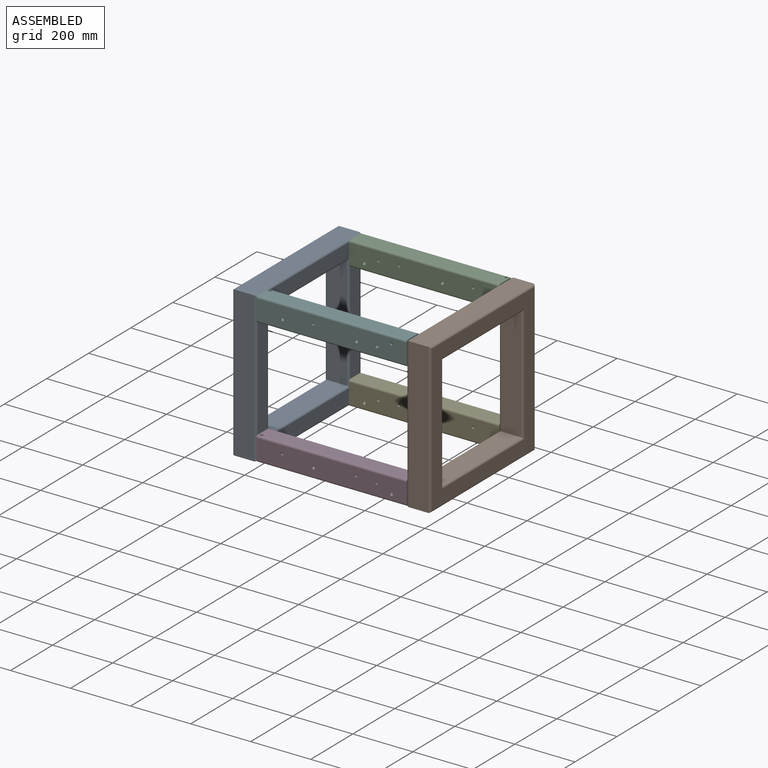
[diagram: assembled view]
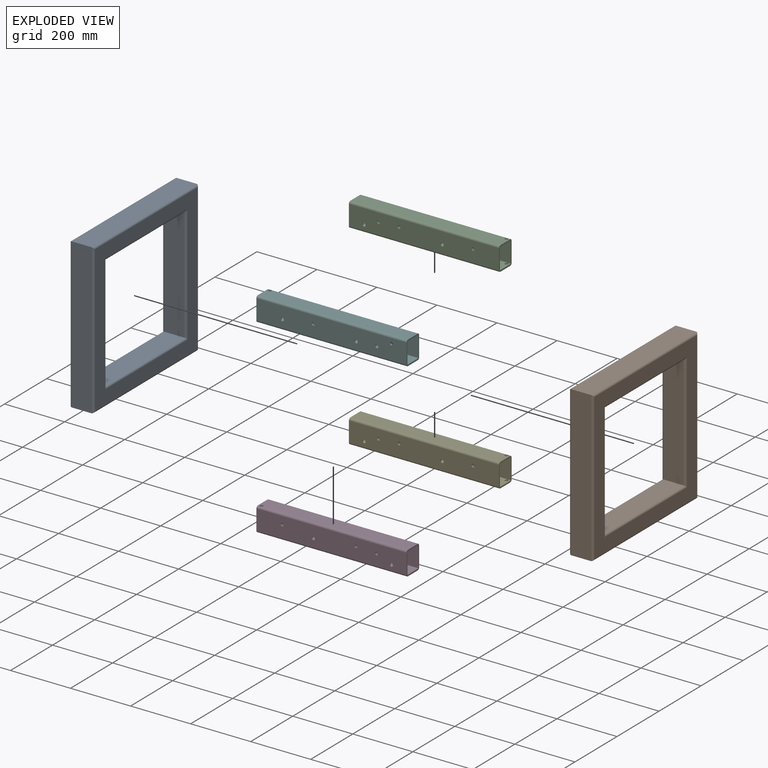
[diagram: exploded view]
GUIDED TOUR — MATED ASSEMBLY WITH SUBASSEMBLIES (Onshape document 570762d4449b630760134de0, AutoMate assembly 570762d4449b630760134de0_2d2cd445d036063de1d0b33d_e6518e5409fb736097e91c08_default)

This assembly has 12 component occurrences arranged in 6 top-level units: 4 individual components plus 2 subassemblies (S0, S1). The tour has two levels: first the top level, where each subassembly is treated as one rigid unit; then each subassembly is toured internally in its own section (nesting deeper than one subassembly level is flattened into its subassembly's section).

Components are labeled P0..P11 across the whole record; subassembly units are labeled S0..S1. A mate is a constraint between two units; its type names the relative motion it leaves free:
  FASTENED — locks the two components together rigidly (no relative motion),
  PLANAR — leaves sliding in the plane through the listed point (normal = the listed direction) and rotation about that normal free.
Axis/direction vectors are unit vectors and 'through' points are millimeter coordinates, both in the assembly's world frame.

TOP-LEVEL MATES (between units; each subassembly's internal mates are listed in its own section)
  1. PLANAR "Planar 14": S1 <-> P5, direction (0.000, 1.000, 0.000) through (397.62, -212.50, 270.20) mm
  2. PLANAR "Planar 6": P10 <-> S0, direction (0.000, 0.000, 1.000) through (108.39, -682.56, 520.20) mm
  3. PLANAR "Planar 3": P6 <-> S0, direction (0.000, 0.000, -1.000) through (108.39, -682.44, 20.20) mm
  4. PLANAR "Planar 10": P5 <-> S0, direction (-1.000, 0.000, 0.000) through (-142.38, -242.50, 480.20) mm
  5. PLANAR "Planar 13": S1 <-> P5, direction (-1.000, 0.000, 0.000) through (357.62, -462.50, 491.00) mm
  6. PLANAR "Planar 2": P6 <-> S0, direction (0.000, -1.000, 0.000) through (107.07, -712.50, 60.21) mm
  7. PLANAR "Planar 5": P10 <-> S0, direction (0.000, -1.000, 0.000) through (-142.38, -712.50, 513.20) mm
  8. PLANAR "Planar 4": P10 <-> S0, direction (-1.000, 0.000, 0.000) through (-142.38, -659.50, 440.20) mm
  9. PLANAR "Planar 12": P5 <-> S0, direction (0.000, 0.000, 1.000) through (106.86, -242.56, 520.20) mm
  10. PLANAR "Planar 1": P6 <-> S0, direction (-1.000, 0.000, 0.000) through (-142.38, -705.50, 20.20) mm
  11. PLANAR "Planar 11": P5 <-> S0, direction (0.000, 1.000, 0.000) through (108.18, -212.50, 480.21) mm
  12. PLANAR "Planar 9": P7 <-> S0, direction (0.000, 1.000, 0.000) through (108.18, -212.50, 60.21) mm
  13. PLANAR "Planar 8": P7 <-> S0, direction (0.000, 0.000, -1.000) through (106.86, -242.56, 20.20) mm
  14. PLANAR "Planar 15": S1 <-> P5, direction (0.000, 0.000, 1.000) through (397.62, -462.50, 520.20) mm
  15. PLANAR "Planar 7": P7 <-> S0, direction (-1.000, 0.000, 0.000) through (-142.38, -242.50, 20.20) mm

TOP-LEVEL ASSEMBLY ORDER
  1. P10 — the base component [order verified]
  2. P5 [order verified]
  3. P7 [order verified]
  4. P6 [order verified]
  5. S1 [order verified]
  6. S0 [order verified]
Order-tag legend:
  [order verified] — this step's position reverses a verified removal order: the component was checked to insert without passing through the ones already placed.

Of the 12 component occurrences, 12 carry the full construction recipe — the FeatureScript program that regenerates the part's solid from scratch; the rest are supplied as boundary geometry only. Each toured unit is shown spotlighted twice — assembled, then exploded with a leader line back to its socket (green = recipe-attached component, orange = geometry-only, blue = subassembly unit; the rest desaturated gray).
NOTE — document 2 of 2 of this assembly tour. The two overview renders and the header above are repeated from document 1; the component sections below continue where the previous document stopped.
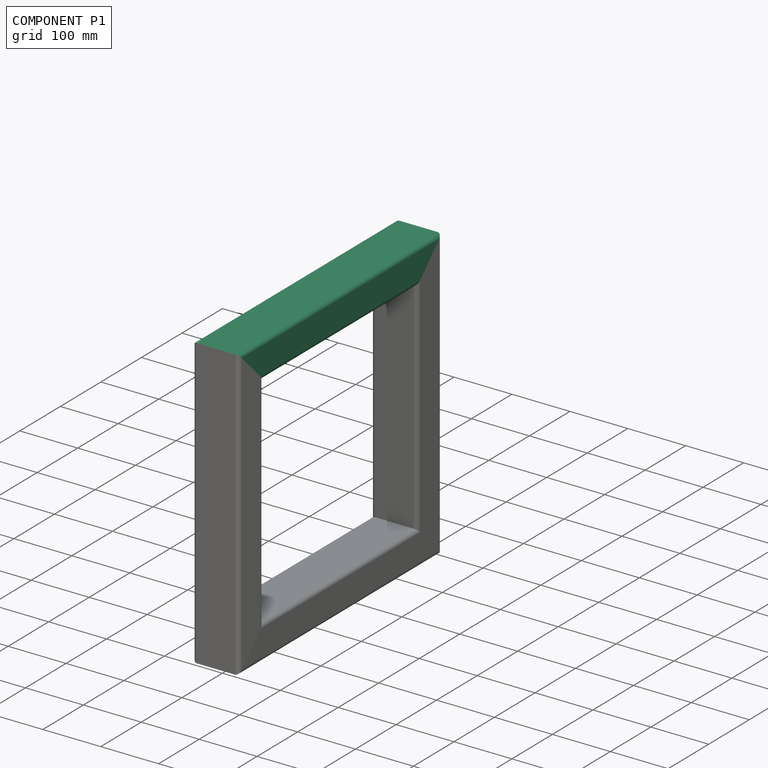
[diagram: component P1 — assembled]
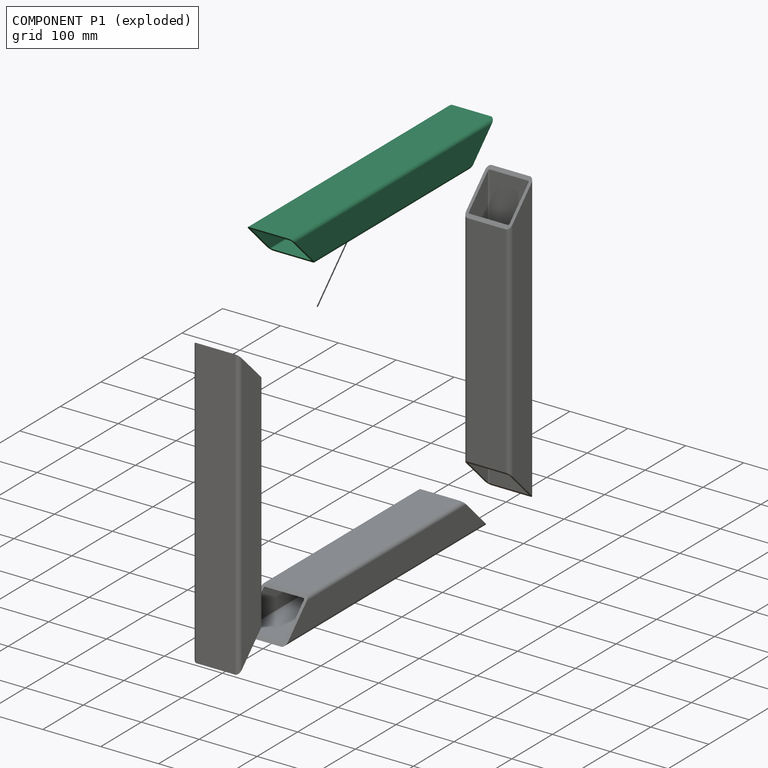
[diagram: component P1 — exploded]
COMPONENT P1 — recipe-attached (CADFS 00210872, mesh-verified: the recipe's output STEP matches this component's geometry to below the mesh-comparison resolution (tessellation chordal tolerance ~0.765 mm)).
Held by: PLANAR mate "Planar 6" to P9; FASTENED mate "Fastened 2" to P8; PLANAR mate "Planar 5" to P9; PLANAR mate "Planar 3" to P8; PLANAR mate "Planar 4" to P8; PLANAR mate "Planar 3" to P8; PLANAR mate "Planar 4" to P8; FASTENED mate "Fastened 2" to P8; PLANAR mate "Planar 5" to P9; PLANAR mate "Planar 6" to P9.
Construction recipe (FeatureScript — the CAD program that rebuilds this solid; sketch coordinates are in the units given by the * unit suffixes, e.g. mm):

FeatureScript 1511;
import(path : "onshape/std/geometry.fs", version : "1511.0");
import(path : "onshape/std/common.fs", version : "1511.0");
const mm = millimeter;
const VERTEX = EntityType.VERTEX;
const EDGE = EntityType.EDGE;
const FACE = EntityType.FACE;
const BODY = EntityType.BODY;
function v(x, y){return vector(x, y);}
function OD(order){return orderDisambiguation(order);}
function OSD(set){return originalSetDisambiguation(set);}
function TD(topology){return topologyDisambiguation(topology);}
function TDD(query){return trueDependencyDisambiguation(query);}
function sQuery(a, b, c) {return sketchEntityQuery(a, b, c);}

annotation { "Feature Type Name" : "Feature", "Feature Type Description" : "" }
export const myFeature = defineFeature(function(context is Context, id is Id, definition is map)
    precondition{}
    {
        {
            var Q0;
            Q0=qCreatedBy(makeId("Front.planeOp"),FACE);
            var sketch = newSketch(context, id + "F0", { "sketchPlane" : qUnion([Q0])});
            skLineSegment(sketch, "E0.bottom", {"start": v(33, 30) * mm, "end": v(-33, 30) * mm});
            skLineSegment(sketch, "E0.top", {"start": v(33, -30) * mm, "end": v(-33, -30) * mm});
            skLineSegment(sketch, "E0.left", {"start": v(40, 23) * mm, "end": v(40, -23) * mm});
            skLineSegment(sketch, "E0.right", {"start": v(-40, 23) * mm, "end": v(-40, -23) * mm});
            skPoint(sketch, "E0.middle", {"position": v(0, 0) * mm});
            skLineSegment(sketch, "E1.bottom", {"start": v(33, 25) * mm, "end": v(-33, 25) * mm});
            skLineSegment(sketch, "E1.top", {"start": v(33, -25) * mm, "end": v(-33, -25) * mm});
            skLineSegment(sketch, "E1.left", {"start": v(35, 23) * mm, "end": v(35, -23) * mm});
            skLineSegment(sketch, "E1.right", {"start": v(-35, 23) * mm, "end": v(-35, -23) * mm});
            skPoint(sketch, "E2.visualSharp", {"position": v(-40, 30) * mm});
            skArc(sketch, "E2.filletArc", {"start": v(-33, 30) * mm, "mid": v(-37.95, 27.95) * mm, "end": v(-40, 23) * mm});
            skPoint(sketch, "E3.visualSharp", {"position": v(-40, -30) * mm});
            skArc(sketch, "E3.filletArc", {"start": v(-40, -23) * mm, "mid": v(-37.95, -27.95) * mm, "end": v(-33, -30) * mm});
            skPoint(sketch, "E4.visualSharp", {"position": v(40, -30) * mm});
            skArc(sketch, "E4.filletArc", {"start": v(33, -30) * mm, "mid": v(37.95, -27.95) * mm, "end": v(40, -23) * mm});
            skPoint(sketch, "E5.visualSharp", {"position": v(40, 30) * mm});
            skArc(sketch, "E5.filletArc", {"start": v(40, 23) * mm, "mid": v(37.95, 27.95) * mm, "end": v(33, 30) * mm});
            skPoint(sketch, "E6.visualSharp", {"position": v(-35, -25) * mm});
            skArc(sketch, "E6.filletArc", {"start": v(-35, -23) * mm, "mid": v(-34.41, -24.41) * mm, "end": v(-33, -25) * mm});
            skPoint(sketch, "E7.visualSharp", {"position": v(35, 25) * mm});
            skArc(sketch, "E7.filletArc", {"start": v(35, 23) * mm, "mid": v(34.41, 24.41) * mm, "end": v(33, 25) * mm});
            skPoint(sketch, "E8.visualSharp", {"position": v(35, -25) * mm});
            skArc(sketch, "E8.filletArc", {"start": v(33, -25) * mm, "mid": v(34.41, -24.41) * mm, "end": v(35, -23) * mm});
            skPoint(sketch, "E9.visualSharp", {"position": v(-35, 25) * mm});
            skArc(sketch, "E9.filletArc", {"start": v(-33, 25) * mm, "mid": v(-34.41, 24.41) * mm, "end": v(-35, 23) * mm});
            skSolve(sketch);
        }
        {
            var Q0;
            Q0=makeQuery(id+"F0.imprint","IMPRINT",FACE,{"disambiguationData":[TD([[makeQuery(id+"F0.imprint","IMPRINT",EDGE,{"derivedFrom":sQuery(id+"F0.wireOp",EDGE,"E0.bottom")}),1.0]])]});
            extrude(context, id + "F1", {"entities" : qUnion([Q0]), "endBound" : BoundingType.SYMMETRIC, "depth" : 500 * mm});
        }
        {
            var Q0;
            Q0=makeQuery(id+"F1.opExtrude","SWEPT_FACE",FACE,{"disambiguationData":[OSD([sQuery(id+"F0.wireOp",EDGE,"E0.right")])]});
            var sketch = newSketch(context, id + "F2", { "sketchPlane" : qUnion([Q0])});
            skLineSegment(sketch, "E10.0", {"start": v(-190, -30) * mm, "end": v(-250, -30) * mm});
            skPoint(sketch, "E11.0", {"position": v(-250, 30) * mm});
            skLineSegment(sketch, "E12", {"start": v(-250, 30) * mm, "end": v(-250, -30) * mm});
            skLineSegment(sketch, "E13", {"start": v(-250, 30) * mm, "end": v(-190, -30) * mm});
            skPoint(sketch, "E14.orphan", {"position": v(250, -30) * mm});
            skLineSegment(sketch, "E15.MirrorCS", {"start": v(250, 30) * mm, "end": v(250, -30) * mm});
            skLineSegment(sketch, "E16.MirrorCS", {"start": v(250, 30) * mm, "end": v(190, -30) * mm});
            skLineSegment(sketch, "E17.MirrorCS", {"start": v(190, -30) * mm, "end": v(250, -30) * mm});
            skSolve(sketch);
        }
        {
            var Q0;
            {var subQ0=sQuery(id+"F2.wireOp",EDGE,"E10.0");Q0=makeQuery(id+"F2.imprint","IMPRINT",FACE,{"disambiguationData":[TD([[makeQuery(id+"F2.imprint","IMPRINT",EDGE,{"derivedFrom":subQ0}),-1.0]])]});}
            var Q1;
            {var subQ0=sQuery(id+"F2.wireOp",EDGE,"E12");var subQ1=sQuery(id+"F0.wireOp",EDGE,"E0.right");var subQ2=makeQuery(id+"F1.opExtrude","SWEPT_EDGE",EDGE,{"disambiguationData":[OSD([subQ1,sQuery(id+"F0.wireOp",EDGE,"E2.filletArc")])]});var subQ3=makeQuery(id+"F2.imprint","INTERSECT",VERTEX,{"derivedFrom":[subQ2,subQ0]});Q1=makeQuery(id+"F2.imprint","IMPRINT",FACE,{"disambiguationData":[TD([[makeQuery(id+"F2.imprint","IMPRINT",EDGE,{"disambiguationData":[TD([[subQ3,-1.0]])],"derivedFrom":subQ0}),1.0]])]});}
            var Q2;
            {var subQ0=sQuery(id+"F2.wireOp",EDGE,"E12");var subQ3=sQuery(id+"F2.wireOp",EDGE,"E13");var subQ4=makeQuery(id+"F2.imprint","INTERSECT",VERTEX,{"derivedFrom":[subQ0,subQ3]});Q2=makeQuery(id+"F2.imprint","IMPRINT",FACE,{"disambiguationData":[TD([[makeQuery(id+"F2.imprint","IMPRINT",EDGE,{"disambiguationData":[TD([[subQ4,-1.0]])],"derivedFrom":subQ0}),1.0]])]});}
            var Q3;
            {var subQ0=sQuery(id+"F2.wireOp",EDGE,"E15.MirrorCS");var subQ1=sQuery(id+"F0.wireOp",EDGE,"E0.right");var subQ2=makeQuery(id+"F1.opExtrude","SWEPT_EDGE",EDGE,{"disambiguationData":[OSD([subQ1,sQuery(id+"F0.wireOp",EDGE,"E2.filletArc")])]});var subQ3=makeQuery(id+"F2.imprint","INTERSECT",VERTEX,{"derivedFrom":[subQ2,subQ0]});Q3=makeQuery(id+"F2.imprint","IMPRINT",FACE,{"disambiguationData":[TD([[makeQuery(id+"F2.imprint","IMPRINT",EDGE,{"disambiguationData":[TD([[subQ3,-1.0]])],"derivedFrom":subQ0}),-1.0]])]});}
            var Q4;
            {var subQ3=sQuery(id+"F2.wireOp",EDGE,"E17.MirrorCS");Q4=makeQuery(id+"F2.imprint","IMPRINT",FACE,{"disambiguationData":[TD([[makeQuery(id+"F2.imprint","IMPRINT",EDGE,{"derivedFrom":subQ3}),1.0]])]});}
            var Q5;
            {var subQ0=sQuery(id+"F2.wireOp",EDGE,"E15.MirrorCS");var subQ3=sQuery(id+"F2.wireOp",EDGE,"E16.MirrorCS");var subQ4=makeQuery(id+"F2.imprint","INTERSECT",VERTEX,{"derivedFrom":[subQ0,subQ3]});Q5=makeQuery(id+"F2.imprint","IMPRINT",FACE,{"disambiguationData":[TD([[makeQuery(id+"F2.imprint","IMPRINT",EDGE,{"disambiguationData":[TD([[subQ4,-1.0]])],"derivedFrom":subQ0}),-1.0]])]});}
            extrude(context, id + "F3", {"entities" : qUnion([Q0, Q1, Q2, Q3, Q4, Q5]), "operationType" : NewBodyOperationType.REMOVE, "oppositeDirection" : true, "depth" : 200 * mm});
        }
    });
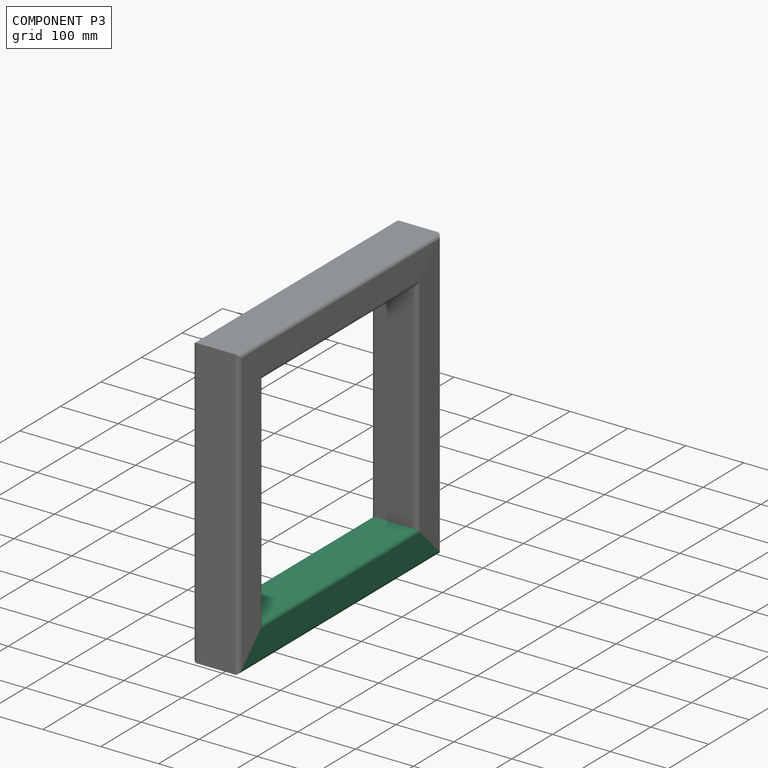
[diagram: component P3 — assembled]
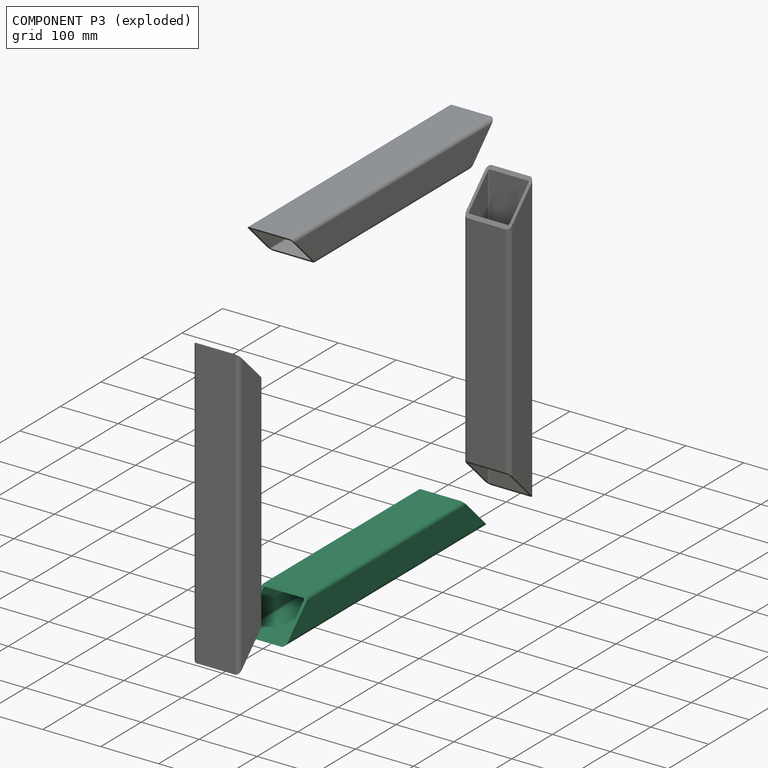
[diagram: component P3 — exploded]
COMPONENT P3 — recipe-attached (CADFS 00210872, mesh-verified: the recipe's output STEP matches this component's geometry to below the mesh-comparison resolution (tessellation chordal tolerance ~0.765 mm)).
Held by: PLANAR mate "Planar 2" to P8; FASTENED mate "Fastened 1" to P8; FASTENED mate "Fastened 3" to P9; PLANAR mate "Planar 1" to P8; PLANAR mate "Planar 1" to P8; FASTENED mate "Fastened 1" to P8; FASTENED mate "Fastened 3" to P9; PLANAR mate "Planar 2" to P8.
Construction recipe (FeatureScript — the CAD program that rebuilds this solid; sketch coordinates are in the units given by the * unit suffixes, e.g. mm):

FeatureScript 1511;
import(path : "onshape/std/geometry.fs", version : "1511.0");
import(path : "onshape/std/common.fs", version : "1511.0");
const mm = millimeter;
const VERTEX = EntityType.VERTEX;
const EDGE = EntityType.EDGE;
const FACE = EntityType.FACE;
const BODY = EntityType.BODY;
function v(x, y){return vector(x, y);}
function OD(order){return orderDisambiguation(order);}
function OSD(set){return originalSetDisambiguation(set);}
function TD(topology){return topologyDisambiguation(topology);}
function TDD(query){return trueDependencyDisambiguation(query);}
function sQuery(a, b, c) {return sketchEntityQuery(a, b, c);}

annotation { "Feature Type Name" : "Feature", "Feature Type Description" : "" }
export const myFeature = defineFeature(function(context is Context, id is Id, definition is map)
    precondition{}
    {
        {
            var Q0;
            Q0=qCreatedBy(makeId("Front.planeOp"),FACE);
            var sketch = newSketch(context, id + "F0", { "sketchPlane" : qUnion([Q0])});
            skLineSegment(sketch, "E0.bottom", {"start": v(33, 30) * mm, "end": v(-33, 30) * mm});
            skLineSegment(sketch, "E0.top", {"start": v(33, -30) * mm, "end": v(-33, -30) * mm});
            skLineSegment(sketch, "E0.left", {"start": v(40, 23) * mm, "end": v(40, -23) * mm});
            skLineSegment(sketch, "E0.right", {"start": v(-40, 23) * mm, "end": v(-40, -23) * mm});
            skPoint(sketch, "E0.middle", {"position": v(0, 0) * mm});
            skLineSegment(sketch, "E1.bottom", {"start": v(33, 25) * mm, "end": v(-33, 25) * mm});
            skLineSegment(sketch, "E1.top", {"start": v(33, -25) * mm, "end": v(-33, -25) * mm});
            skLineSegment(sketch, "E1.left", {"start": v(35, 23) * mm, "end": v(35, -23) * mm});
            skLineSegment(sketch, "E1.right", {"start": v(-35, 23) * mm, "end": v(-35, -23) * mm});
            skPoint(sketch, "E2.visualSharp", {"position": v(-40, 30) * mm});
            skArc(sketch, "E2.filletArc", {"start": v(-33, 30) * mm, "mid": v(-37.95, 27.95) * mm, "end": v(-40, 23) * mm});
            skPoint(sketch, "E3.visualSharp", {"position": v(-40, -30) * mm});
            skArc(sketch, "E3.filletArc", {"start": v(-40, -23) * mm, "mid": v(-37.95, -27.95) * mm, "end": v(-33, -30) * mm});
            skPoint(sketch, "E4.visualSharp", {"position": v(40, -30) * mm});
            skArc(sketch, "E4.filletArc", {"start": v(33, -30) * mm, "mid": v(37.95, -27.95) * mm, "end": v(40, -23) * mm});
            skPoint(sketch, "E5.visualSharp", {"position": v(40, 30) * mm});
            skArc(sketch, "E5.filletArc", {"start": v(40, 23) * mm, "mid": v(37.95, 27.95) * mm, "end": v(33, 30) * mm});
            skPoint(sketch, "E6.visualSharp", {"position": v(-35, -25) * mm});
            skArc(sketch, "E6.filletArc", {"start": v(-35, -23) * mm, "mid": v(-34.41, -24.41) * mm, "end": v(-33, -25) * mm});
            skPoint(sketch, "E7.visualSharp", {"position": v(35, 25) * mm});
            skArc(sketch, "E7.filletArc", {"start": v(35, 23) * mm, "mid": v(34.41, 24.41) * mm, "end": v(33, 25) * mm});
            skPoint(sketch, "E8.visualSharp", {"position": v(35, -25) * mm});
            skArc(sketch, "E8.filletArc", {"start": v(33, -25) * mm, "mid": v(34.41, -24.41) * mm, "end": v(35, -23) * mm});
            skPoint(sketch, "E9.visualSharp", {"position": v(-35, 25) * mm});
            skArc(sketch, "E9.filletArc", {"start": v(-33, 25) * mm, "mid": v(-34.41, 24.41) * mm, "end": v(-35, 23) * mm});
            skSolve(sketch);
        }
        {
            var Q0;
            Q0=makeQuery(id+"F0.imprint","IMPRINT",FACE,{"disambiguationData":[TD([[makeQuery(id+"F0.imprint","IMPRINT",EDGE,{"derivedFrom":sQuery(id+"F0.wireOp",EDGE,"E0.bottom")}),1.0]])]});
            extrude(context, id + "F1", {"entities" : qUnion([Q0]), "endBound" : BoundingType.SYMMETRIC, "depth" : 500 * mm});
        }
        {
            var Q0;
            Q0=makeQuery(id+"F1.opExtrude","SWEPT_FACE",FACE,{"disambiguationData":[OSD([sQuery(id+"F0.wireOp",EDGE,"E0.right")])]});
            var sketch = newSketch(context, id + "F2", { "sketchPlane" : qUnion([Q0])});
            skLineSegment(sketch, "E10.0", {"start": v(-190, -30) * mm, "end": v(-250, -30) * mm});
            skPoint(sketch, "E11.0", {"position": v(-250, 30) * mm});
            skLineSegment(sketch, "E12", {"start": v(-250, 30) * mm, "end": v(-250, -30) * mm});
            skLineSegment(sketch, "E13", {"start": v(-250, 30) * mm, "end": v(-190, -30) * mm});
            skPoint(sketch, "E14.orphan", {"position": v(250, -30) * mm});
            skLineSegment(sketch, "E15.MirrorCS", {"start": v(250, 30) * mm, "end": v(250, -30) * mm});
            skLineSegment(sketch, "E16.MirrorCS", {"start": v(250, 30) * mm, "end": v(190, -30) * mm});
            skLineSegment(sketch, "E17.MirrorCS", {"start": v(190, -30) * mm, "end": v(250, -30) * mm});
            skSolve(sketch);
        }
        {
            var Q0;
            {var subQ0=sQuery(id+"F2.wireOp",EDGE,"E10.0");Q0=makeQuery(id+"F2.imprint","IMPRINT",FACE,{"disambiguationData":[TD([[makeQuery(id+"F2.imprint","IMPRINT",EDGE,{"derivedFrom":subQ0}),-1.0]])]});}
            var Q1;
            {var subQ0=sQuery(id+"F2.wireOp",EDGE,"E12");var subQ1=sQuery(id+"F0.wireOp",EDGE,"E0.right");var subQ2=makeQuery(id+"F1.opExtrude","SWEPT_EDGE",EDGE,{"disambiguationData":[OSD([subQ1,sQuery(id+"F0.wireOp",EDGE,"E2.filletArc")])]});var subQ3=makeQuery(id+"F2.imprint","INTERSECT",VERTEX,{"derivedFrom":[subQ2,subQ0]});Q1=makeQuery(id+"F2.imprint","IMPRINT",FACE,{"disambiguationData":[TD([[makeQuery(id+"F2.imprint","IMPRINT",EDGE,{"disambiguationData":[TD([[subQ3,-1.0]])],"derivedFrom":subQ0}),1.0]])]});}
            var Q2;
            {var subQ0=sQuery(id+"F2.wireOp",EDGE,"E12");var subQ3=sQuery(id+"F2.wireOp",EDGE,"E13");var subQ4=makeQuery(id+"F2.imprint","INTERSECT",VERTEX,{"derivedFrom":[subQ0,subQ3]});Q2=makeQuery(id+"F2.imprint","IMPRINT",FACE,{"disambiguationData":[TD([[makeQuery(id+"F2.imprint","IMPRINT",EDGE,{"disambiguationData":[TD([[subQ4,-1.0]])],"derivedFrom":subQ0}),1.0]])]});}
            var Q3;
            {var subQ0=sQuery(id+"F2.wireOp",EDGE,"E15.MirrorCS");var subQ1=sQuery(id+"F0.wireOp",EDGE,"E0.right");var subQ2=makeQuery(id+"F1.opExtrude","SWEPT_EDGE",EDGE,{"disambiguationData":[OSD([subQ1,sQuery(id+"F0.wireOp",EDGE,"E2.filletArc")])]});var subQ3=makeQuery(id+"F2.imprint","INTERSECT",VERTEX,{"derivedFrom":[subQ2,subQ0]});Q3=makeQuery(id+"F2.imprint","IMPRINT",FACE,{"disambiguationData":[TD([[makeQuery(id+"F2.imprint","IMPRINT",EDGE,{"disambiguationData":[TD([[subQ3,-1.0]])],"derivedFrom":subQ0}),-1.0]])]});}
            var Q4;
            {var subQ3=sQuery(id+"F2.wireOp",EDGE,"E17.MirrorCS");Q4=makeQuery(id+"F2.imprint","IMPRINT",FACE,{"disambiguationData":[TD([[makeQuery(id+"F2.imprint","IMPRINT",EDGE,{"derivedFrom":subQ3}),1.0]])]});}
            var Q5;
            {var subQ0=sQuery(id+"F2.wireOp",EDGE,"E15.MirrorCS");var subQ3=sQuery(id+"F2.wireOp",EDGE,"E16.MirrorCS");var subQ4=makeQuery(id+"F2.imprint","INTERSECT",VERTEX,{"derivedFrom":[subQ0,subQ3]});Q5=makeQuery(id+"F2.imprint","IMPRINT",FACE,{"disambiguationData":[TD([[makeQuery(id+"F2.imprint","IMPRINT",EDGE,{"disambiguationData":[TD([[subQ4,-1.0]])],"derivedFrom":subQ0}),-1.0]])]});}
            extrude(context, id + "F3", {"entities" : qUnion([Q0, Q1, Q2, Q3, Q4, Q5]), "operationType" : NewBodyOperationType.REMOVE, "oppositeDirection" : true, "depth" : 200 * mm});
        }
    });
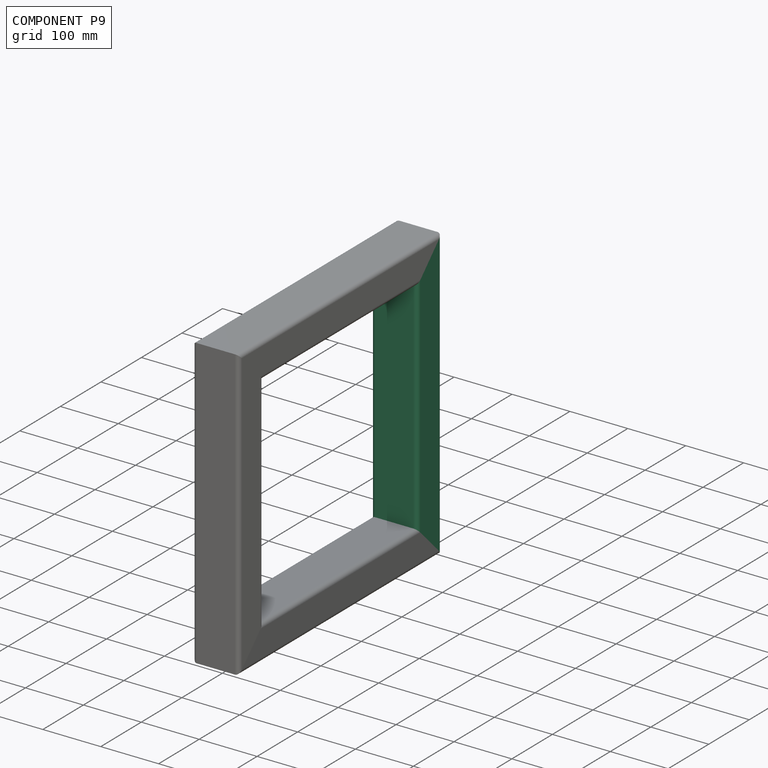
[diagram: component P9 — assembled]
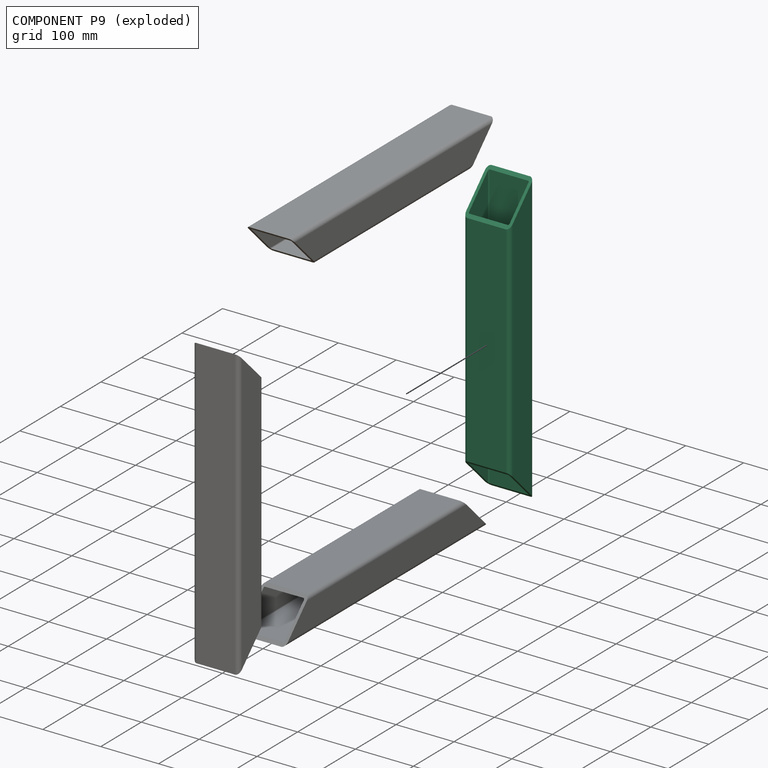
[diagram: component P9 — exploded]
COMPONENT P9 — recipe-attached (CADFS 00210872, mesh-verified: the recipe's output STEP matches this component's geometry to below the mesh-comparison resolution (tessellation chordal tolerance ~0.765 mm)).
Held by: PLANAR mate "Planar 6" to P1; PLANAR mate "Planar 5" to P1; FASTENED mate "Fastened 3" to P3; FASTENED mate "Fastened 3" to P3; PLANAR mate "Planar 5" to P1; PLANAR mate "Planar 6" to P1.
Construction recipe (FeatureScript — the CAD program that rebuilds this solid; sketch coordinates are in the units given by the * unit suffixes, e.g. mm):

FeatureScript 1511;
import(path : "onshape/std/geometry.fs", version : "1511.0");
import(path : "onshape/std/common.fs", version : "1511.0");
const mm = millimeter;
const VERTEX = EntityType.VERTEX;
const EDGE = EntityType.EDGE;
const FACE = EntityType.FACE;
const BODY = EntityType.BODY;
function v(x, y){return vector(x, y);}
function OD(order){return orderDisambiguation(order);}
function OSD(set){return originalSetDisambiguation(set);}
function TD(topology){return topologyDisambiguation(topology);}
function TDD(query){return trueDependencyDisambiguation(query);}
function sQuery(a, b, c) {return sketchEntityQuery(a, b, c);}

annotation { "Feature Type Name" : "Feature", "Feature Type Description" : "" }
export const myFeature = defineFeature(function(context is Context, id is Id, definition is map)
    precondition{}
    {
        {
            var Q0;
            Q0=qCreatedBy(makeId("Front.planeOp"),FACE);
            var sketch = newSketch(context, id + "F0", { "sketchPlane" : qUnion([Q0])});
            skLineSegment(sketch, "E0.bottom", {"start": v(33, 30) * mm, "end": v(-33, 30) * mm});
            skLineSegment(sketch, "E0.top", {"start": v(33, -30) * mm, "end": v(-33, -30) * mm});
            skLineSegment(sketch, "E0.left", {"start": v(40, 23) * mm, "end": v(40, -23) * mm});
            skLineSegment(sketch, "E0.right", {"start": v(-40, 23) * mm, "end": v(-40, -23) * mm});
            skPoint(sketch, "E0.middle", {"position": v(0, 0) * mm});
            skLineSegment(sketch, "E1.bottom", {"start": v(33, 25) * mm, "end": v(-33, 25) * mm});
            skLineSegment(sketch, "E1.top", {"start": v(33, -25) * mm, "end": v(-33, -25) * mm});
            skLineSegment(sketch, "E1.left", {"start": v(35, 23) * mm, "end": v(35, -23) * mm});
            skLineSegment(sketch, "E1.right", {"start": v(-35, 23) * mm, "end": v(-35, -23) * mm});
            skPoint(sketch, "E2.visualSharp", {"position": v(-40, 30) * mm});
            skArc(sketch, "E2.filletArc", {"start": v(-33, 30) * mm, "mid": v(-37.95, 27.95) * mm, "end": v(-40, 23) * mm});
            skPoint(sketch, "E3.visualSharp", {"position": v(-40, -30) * mm});
            skArc(sketch, "E3.filletArc", {"start": v(-40, -23) * mm, "mid": v(-37.95, -27.95) * mm, "end": v(-33, -30) * mm});
            skPoint(sketch, "E4.visualSharp", {"position": v(40, -30) * mm});
            skArc(sketch, "E4.filletArc", {"start": v(33, -30) * mm, "mid": v(37.95, -27.95) * mm, "end": v(40, -23) * mm});
            skPoint(sketch, "E5.visualSharp", {"position": v(40, 30) * mm});
            skArc(sketch, "E5.filletArc", {"start": v(40, 23) * mm, "mid": v(37.95, 27.95) * mm, "end": v(33, 30) * mm});
            skPoint(sketch, "E6.visualSharp", {"position": v(-35, -25) * mm});
            skArc(sketch, "E6.filletArc", {"start": v(-35, -23) * mm, "mid": v(-34.41, -24.41) * mm, "end": v(-33, -25) * mm});
            skPoint(sketch, "E7.visualSharp", {"position": v(35, 25) * mm});
            skArc(sketch, "E7.filletArc", {"start": v(35, 23) * mm, "mid": v(34.41, 24.41) * mm, "end": v(33, 25) * mm});
            skPoint(sketch, "E8.visualSharp", {"position": v(35, -25) * mm});
            skArc(sketch, "E8.filletArc", {"start": v(33, -25) * mm, "mid": v(34.41, -24.41) * mm, "end": v(35, -23) * mm});
            skPoint(sketch, "E9.visualSharp", {"position": v(-35, 25) * mm});
            skArc(sketch, "E9.filletArc", {"start": v(-33, 25) * mm, "mid": v(-34.41, 24.41) * mm, "end": v(-35, 23) * mm});
            skSolve(sketch);
        }
        {
            var Q0;
            Q0=makeQuery(id+"F0.imprint","IMPRINT",FACE,{"disambiguationData":[TD([[makeQuery(id+"F0.imprint","IMPRINT",EDGE,{"derivedFrom":sQuery(id+"F0.wireOp",EDGE,"E0.bottom")}),1.0]])]});
            extrude(context, id + "F1", {"entities" : qUnion([Q0]), "endBound" : BoundingType.SYMMETRIC, "depth" : 500 * mm});
        }
        {
            var Q0;
            Q0=makeQuery(id+"F1.opExtrude","SWEPT_FACE",FACE,{"disambiguationData":[OSD([sQuery(id+"F0.wireOp",EDGE,"E0.right")])]});
            var sketch = newSketch(context, id + "F2", { "sketchPlane" : qUnion([Q0])});
            skLineSegment(sketch, "E10.0", {"start": v(-190, -30) * mm, "end": v(-250, -30) * mm});
            skPoint(sketch, "E11.0", {"position": v(-250, 30) * mm});
            skLineSegment(sketch, "E12", {"start": v(-250, 30) * mm, "end": v(-250, -30) * mm});
            skLineSegment(sketch, "E13", {"start": v(-250, 30) * mm, "end": v(-190, -30) * mm});
            skPoint(sketch, "E14.orphan", {"position": v(250, -30) * mm});
            skLineSegment(sketch, "E15.MirrorCS", {"start": v(250, 30) * mm, "end": v(250, -30) * mm});
            skLineSegment(sketch, "E16.MirrorCS", {"start": v(250, 30) * mm, "end": v(190, -30) * mm});
            skLineSegment(sketch, "E17.MirrorCS", {"start": v(190, -30) * mm, "end": v(250, -30) * mm});
            skSolve(sketch);
        }
        {
            var Q0;
            {var subQ0=sQuery(id+"F2.wireOp",EDGE,"E10.0");Q0=makeQuery(id+"F2.imprint","IMPRINT",FACE,{"disambiguationData":[TD([[makeQuery(id+"F2.imprint","IMPRINT",EDGE,{"derivedFrom":subQ0}),-1.0]])]});}
            var Q1;
            {var subQ0=sQuery(id+"F2.wireOp",EDGE,"E12");var subQ1=sQuery(id+"F0.wireOp",EDGE,"E0.right");var subQ2=makeQuery(id+"F1.opExtrude","SWEPT_EDGE",EDGE,{"disambiguationData":[OSD([subQ1,sQuery(id+"F0.wireOp",EDGE,"E2.filletArc")])]});var subQ3=makeQuery(id+"F2.imprint","INTERSECT",VERTEX,{"derivedFrom":[subQ2,subQ0]});Q1=makeQuery(id+"F2.imprint","IMPRINT",FACE,{"disambiguationData":[TD([[makeQuery(id+"F2.imprint","IMPRINT",EDGE,{"disambiguationData":[TD([[subQ3,-1.0]])],"derivedFrom":subQ0}),1.0]])]});}
            var Q2;
            {var subQ0=sQuery(id+"F2.wireOp",EDGE,"E12");var subQ3=sQuery(id+"F2.wireOp",EDGE,"E13");var subQ4=makeQuery(id+"F2.imprint","INTERSECT",VERTEX,{"derivedFrom":[subQ0,subQ3]});Q2=makeQuery(id+"F2.imprint","IMPRINT",FACE,{"disambiguationData":[TD([[makeQuery(id+"F2.imprint","IMPRINT",EDGE,{"disambiguationData":[TD([[subQ4,-1.0]])],"derivedFrom":subQ0}),1.0]])]});}
            var Q3;
            {var subQ0=sQuery(id+"F2.wireOp",EDGE,"E15.MirrorCS");var subQ1=sQuery(id+"F0.wireOp",EDGE,"E0.right");var subQ2=makeQuery(id+"F1.opExtrude","SWEPT_EDGE",EDGE,{"disambiguationData":[OSD([subQ1,sQuery(id+"F0.wireOp",EDGE,"E2.filletArc")])]});var subQ3=makeQuery(id+"F2.imprint","INTERSECT",VERTEX,{"derivedFrom":[subQ2,subQ0]});Q3=makeQuery(id+"F2.imprint","IMPRINT",FACE,{"disambiguationData":[TD([[makeQuery(id+"F2.imprint","IMPRINT",EDGE,{"disambiguationData":[TD([[subQ3,-1.0]])],"derivedFrom":subQ0}),-1.0]])]});}
            var Q4;
            {var subQ3=sQuery(id+"F2.wireOp",EDGE,"E17.MirrorCS");Q4=makeQuery(id+"F2.imprint","IMPRINT",FACE,{"disambiguationData":[TD([[makeQuery(id+"F2.imprint","IMPRINT",EDGE,{"derivedFrom":subQ3}),1.0]])]});}
            var Q5;
            {var subQ0=sQuery(id+"F2.wireOp",EDGE,"E15.MirrorCS");var subQ3=sQuery(id+"F2.wireOp",EDGE,"E16.MirrorCS");var subQ4=makeQuery(id+"F2.imprint","INTERSECT",VERTEX,{"derivedFrom":[subQ0,subQ3]});Q5=makeQuery(id+"F2.imprint","IMPRINT",FACE,{"disambiguationData":[TD([[makeQuery(id+"F2.imprint","IMPRINT",EDGE,{"disambiguationData":[TD([[subQ4,-1.0]])],"derivedFrom":subQ0}),-1.0]])]});}
            extrude(context, id + "F3", {"entities" : qUnion([Q0, Q1, Q2, Q3, Q4, Q5]), "operationType" : NewBodyOperationType.REMOVE, "oppositeDirection" : true, "depth" : 200 * mm});
        }
    });
PROVENANCE & LICENSES
Assembly (occurrences, transforms, mates, per-part STEP geometry): AutoMate dataset, Zenodo record 7776208, CC0.
Construction recipes: CADFS (HuggingFace VladPyatov/CADFS, CC-BY-4.0, layered over the ABC dataset), FeatureScript reconstruction programs keyed by ABC model id.
Join: ABC meta listings map ABC model id -> Onshape documentId; within a shared document, parts are matched by geometric signature (bounding-box dims + volume at 0.1% relative tolerance, exact B-rep face/solid counts).
Verification: 12 of this assembly's 12 components carry a recipe attachment, and every attachment is mesh-verified: the CADFS STEP and the AutoMate member STEP were compared as meshes in their shared local frame (symmetric sampled-point-to-mesh distance); worst across the 12 attachments: below the mesh-comparison resolution (tessellation chordal tolerance ~0.765 mm) on a 510 mm part.
Renders: orthographic iso camera (az 35 / el 25); the floor grid conveys scale (grid pitch printed in each image; no ruler). In the exploded view each component is displaced by its stored offset vector: the offsets alone carry the explosion direction (mate normal/axis signs are not orientation cues and do not encode it), and separation distances are assigned per mate-chain, not proportionally to assembly-order depth.
